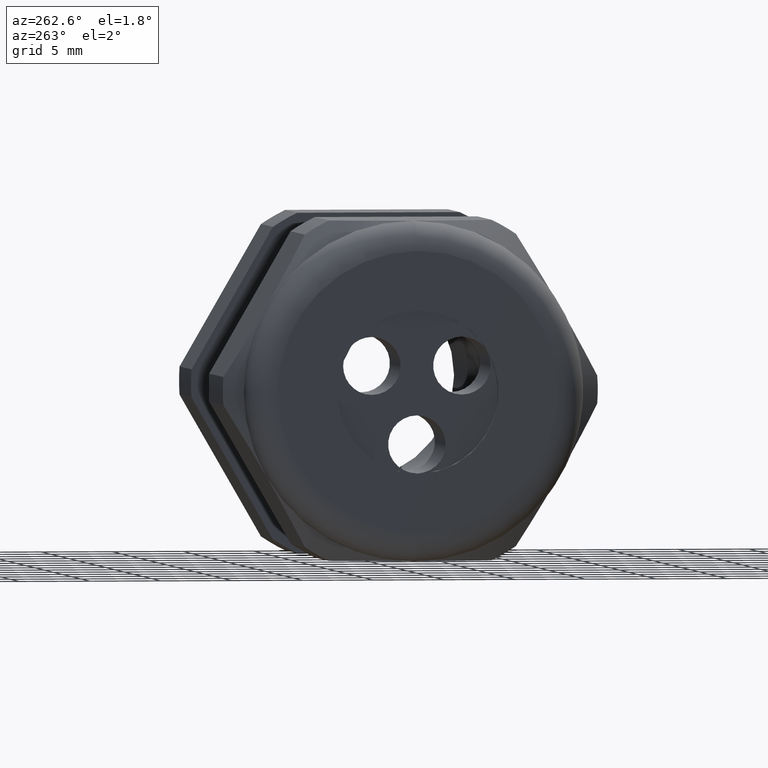
[diagram: clean part render]
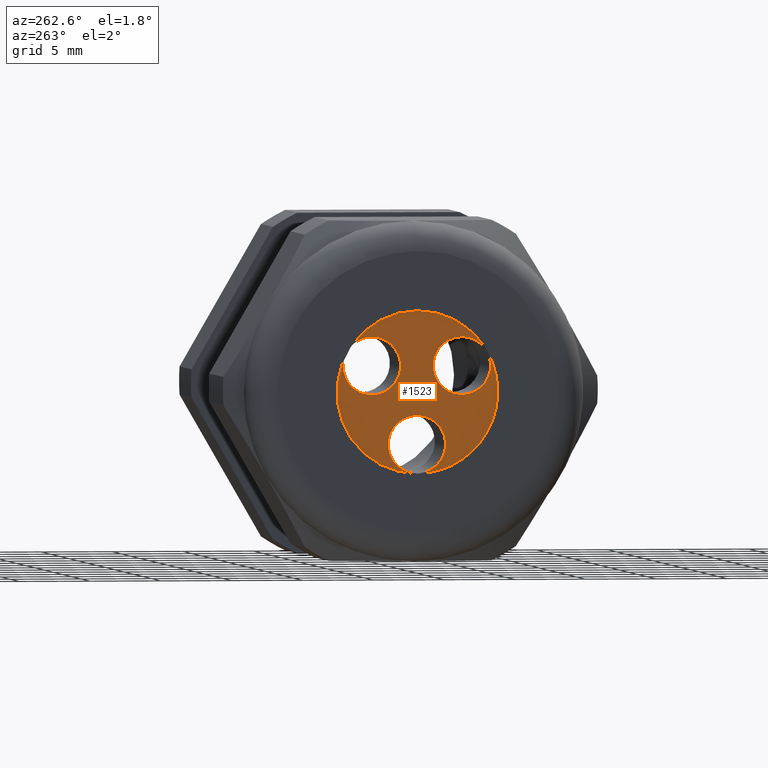
[diagram: same view with one face highlighted and labeled with its STEP entity id]
A machine part, auxiliary view. The second image highlights one B-rep face of the part: STEP entity #1523.
In plain terms, the highlighted planar face has unit normal (-1, 0, 0).
Its self-contained STEP definition (entity closure, byte-faithful):
#1516 = ORIENTED_EDGE ( 'NONE', *, *, #1634, .F. ) ;
#1517 = EDGE_CURVE ( 'NONE', #1678, #1677, #4468, .T. ) ;
#1518 = EDGE_CURVE ( 'NONE', #1637, #1659, #4459, .T. ) ;
#1519 = ORIENTED_EDGE ( 'NONE', *, *, #1636, .F. ) ;
#1520 = EDGE_LOOP ( 'NONE', ( #1588, #1516 ) ) ;
#1521 = EDGE_LOOP ( 'NONE', ( #1527, #1525 ) ) ;
#1523 = ADVANCED_FACE ( 'NONE', ( #4454, #4453, #4452, #4451 ), #4450, .T. ) ;
#1524 = EDGE_CURVE ( 'NONE', #1752, #1751, #4445, .T. ) ;
#1525 = ORIENTED_EDGE ( 'NONE', *, *, #1648, .F. ) ;
#1526 = ORIENTED_EDGE ( 'NONE', *, *, #1518, .F. ) ;
#1527 = ORIENTED_EDGE ( 'NONE', *, *, #1524, .F. ) ;
#1529 = EDGE_LOOP ( 'NONE', ( #1526, #1519 ) ) ;
#1585 = EDGE_LOOP ( 'NONE', ( #1589, #1587 ) ) ;
#1586 = EDGE_CURVE ( 'NONE', #1635, #1632, #4556, .T. ) ;
#1587 = ORIENTED_EDGE ( 'NONE', *, *, #1676, .T. ) ;
#1588 = ORIENTED_EDGE ( 'NONE', *, *, #1586, .F. ) ;
#1589 = ORIENTED_EDGE ( 'NONE', *, *, #1517, .T. ) ;
#1632 = VERTEX_POINT ( 'NONE', #4657 ) ;
#1634 = EDGE_CURVE ( 'NONE', #1632, #1635, #4656, .T. ) ;
#1635 = VERTEX_POINT ( 'NONE', #4651 ) ;
#1636 = EDGE_CURVE ( 'NONE', #1659, #1637, #4650, .T. ) ;
#1637 = VERTEX_POINT ( 'NONE', #4645 ) ;
#1648 = EDGE_CURVE ( 'NONE', #1751, #1752, #4687, .T. ) ;
#1659 = VERTEX_POINT ( 'NONE', #4661 ) ;
#1676 = EDGE_CURVE ( 'NONE', #1677, #1678, #4696, .T. ) ;
#1677 = VERTEX_POINT ( 'NONE', #4692 ) ;
#1678 = VERTEX_POINT ( 'NONE', #4691 ) ;
#1751 = VERTEX_POINT ( 'NONE', #4873 ) ;
#1752 = VERTEX_POINT ( 'NONE', #4872 ) ;
#4441 = DIRECTION ( 'NONE',  ( 0.0000000000000000000, -0.8660254037844433700, -0.4999999999999920100 ) ) ;
#4442 = DIRECTION ( 'NONE',  ( -1.000000000000000000, 0.0000000000000000000, 0.0000000000000000000 ) ) ;
#4443 = CARTESIAN_POINT ( 'NONE',  ( -1.389999999999999900, 0.1252965554195332500, 0.07233999999999883600 ) ) ;
#4444 = AXIS2_PLACEMENT_3D ( 'NONE', #4443, #4442, #4441 ) ;
#4445 = CIRCLE ( 'NONE', #4444, 0.08000000000000000200 ) ;
#4446 = DIRECTION ( 'NONE',  ( 0.0000000000000000000, 0.0000000000000000000, 1.000000000000000000 ) ) ;
#4447 = DIRECTION ( 'NONE',  ( -1.000000000000000000, 0.0000000000000000000, 0.0000000000000000000 ) ) ;
#4448 = CARTESIAN_POINT ( 'NONE',  ( -1.389999999999999900, 0.0000000000000000000, 0.0000000000000000000 ) ) ;
#4449 = AXIS2_PLACEMENT_3D ( 'NONE', #4448, #4447, #4446 ) ;
#4450 = PLANE ( 'NONE',  #4449 ) ;
#4451 = FACE_OUTER_BOUND ( 'NONE', #1585, .T. ) ;
#4452 = FACE_BOUND ( 'NONE', #1520, .T. ) ;
#4453 = FACE_BOUND ( 'NONE', #1529, .T. ) ;
#4454 = FACE_BOUND ( 'NONE', #1521, .T. ) ;
#4455 = DIRECTION ( 'NONE',  ( 0.0000000000000000000, 0.8660254037844363800, -0.5000000000000041100 ) ) ;
#4456 = DIRECTION ( 'NONE',  ( -1.000000000000000000, 0.0000000000000000000, 0.0000000000000000000 ) ) ;
#4457 = CARTESIAN_POINT ( 'NONE',  ( -1.389999999999999900, -0.1252965554195322700, 0.07234000000000059800 ) ) ;
#4458 = AXIS2_PLACEMENT_3D ( 'NONE', #4457, #4456, #4455 ) ;
#4459 = CIRCLE ( 'NONE', #4458, 0.08000000000000000200 ) ;
#4460 = DIRECTION ( 'NONE',  ( 0.0000000000000000000, 0.0000000000000000000, 1.000000000000000000 ) ) ;
#4461 = DIRECTION ( 'NONE',  ( -1.000000000000000000, 0.0000000000000000000, 0.0000000000000000000 ) ) ;
#4462 = CARTESIAN_POINT ( 'NONE',  ( -1.389999999999999900, 0.0000000000000000000, 0.0000000000000000000 ) ) ;
#4463 = AXIS2_PLACEMENT_3D ( 'NONE', #4462, #4461, #4460 ) ;
#4468 = CIRCLE ( 'NONE', #4463, 0.2249999999999999800 ) ;
#4552 = DIRECTION ( 'NONE',  ( 0.0000000000000000000, 0.0000000000000000000, 1.000000000000000000 ) ) ;
#4553 = DIRECTION ( 'NONE',  ( -1.000000000000000000, 0.0000000000000000000, 0.0000000000000000000 ) ) ;
#4554 = CARTESIAN_POINT ( 'NONE',  ( -1.389999999999999900, 0.0000000000000000000, -0.1446799999999999800 ) ) ;
#4555 = AXIS2_PLACEMENT_3D ( 'NONE', #4554, #4553, #4552 ) ;
#4556 = CIRCLE ( 'NONE', #4555, 0.08000000000000000200 ) ;
#4645 = CARTESIAN_POINT ( 'NONE',  ( -1.389999999999999900, -0.1252965554195322700, 0.1523400000000006100 ) ) ;
#4646 = DIRECTION ( 'NONE',  ( 0.0000000000000000000, 0.8660254037844363800, -0.5000000000000041100 ) ) ;
#4647 = DIRECTION ( 'NONE',  ( -1.000000000000000000, 0.0000000000000000000, 0.0000000000000000000 ) ) ;
#4648 = CARTESIAN_POINT ( 'NONE',  ( -1.389999999999999900, -0.1252965554195322700, 0.07234000000000059800 ) ) ;
#4649 = AXIS2_PLACEMENT_3D ( 'NONE', #4648, #4647, #4646 ) ;
#4650 = CIRCLE ( 'NONE', #4649, 0.08000000000000000200 ) ;
#4651 = CARTESIAN_POINT ( 'NONE',  ( -1.389999999999999900, 0.0000000000000000000, -0.06467999999999998800 ) ) ;
#4652 = DIRECTION ( 'NONE',  ( 0.0000000000000000000, 0.0000000000000000000, 1.000000000000000000 ) ) ;
#4653 = DIRECTION ( 'NONE',  ( -1.000000000000000000, 0.0000000000000000000, 0.0000000000000000000 ) ) ;
#4654 = CARTESIAN_POINT ( 'NONE',  ( -1.389999999999999900, 0.0000000000000000000, -0.1446799999999999800 ) ) ;
#4655 = AXIS2_PLACEMENT_3D ( 'NONE', #4654, #4653, #4652 ) ;
#4656 = CIRCLE ( 'NONE', #4655, 0.08000000000000000200 ) ;
#4657 = CARTESIAN_POINT ( 'NONE',  ( -1.389999999999999900, 9.797174393178824000E-018, -0.2246800000000000200 ) ) ;
#4661 = CARTESIAN_POINT ( 'NONE',  ( -1.389999999999999900, -0.1252965554195322500, -0.007659999999999408600 ) ) ;
#4683 = DIRECTION ( 'NONE',  ( 0.0000000000000000000, -0.8660254037844433700, -0.4999999999999920100 ) ) ;
#4684 = DIRECTION ( 'NONE',  ( -1.000000000000000000, 0.0000000000000000000, 0.0000000000000000000 ) ) ;
#4685 = CARTESIAN_POINT ( 'NONE',  ( -1.389999999999999900, 0.1252965554195332500, 0.07233999999999883600 ) ) ;
#4686 = AXIS2_PLACEMENT_3D ( 'NONE', #4685, #4684, #4683 ) ;
#4687 = CIRCLE ( 'NONE', #4686, 0.08000000000000000200 ) ;
#4691 = CARTESIAN_POINT ( 'NONE',  ( -1.389999999999999900, 0.0000000000000000000, 0.2249999999999999800 ) ) ;
#4692 = CARTESIAN_POINT ( 'NONE',  ( -1.389999999999999900, 2.755455298081544500E-017, -0.2249999999999999800 ) ) ;
#4693 = DIRECTION ( 'NONE',  ( 0.0000000000000000000, 0.0000000000000000000, 1.000000000000000000 ) ) ;
#4694 = DIRECTION ( 'NONE',  ( -1.000000000000000000, 0.0000000000000000000, 0.0000000000000000000 ) ) ;
#4695 = AXIS2_PLACEMENT_3D ( 'NONE', #4702, #4694, #4693 ) ;
#4696 = CIRCLE ( 'NONE', #4695, 0.2249999999999999800 ) ;
#4702 = CARTESIAN_POINT ( 'NONE',  ( -1.389999999999999900, 0.0000000000000000000, 0.0000000000000000000 ) ) ;
#4872 = CARTESIAN_POINT ( 'NONE',  ( -1.389999999999999900, 0.1252965554195332500, 0.1523399999999988400 ) ) ;
#4873 = CARTESIAN_POINT ( 'NONE',  ( -1.389999999999999900, 0.1252965554195332500, -0.007660000000001167600 ) ) ;